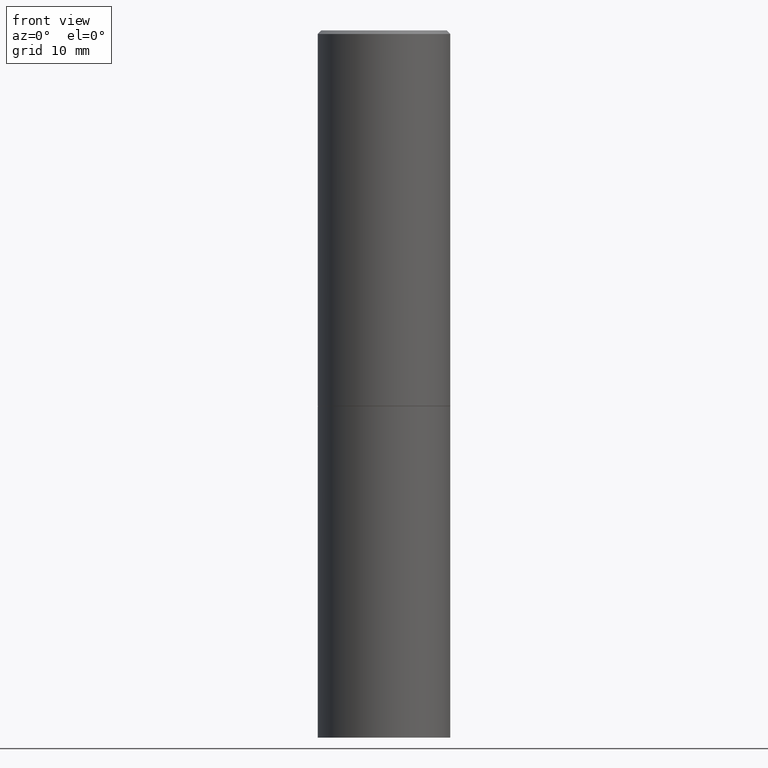
[diagram: clean part render]
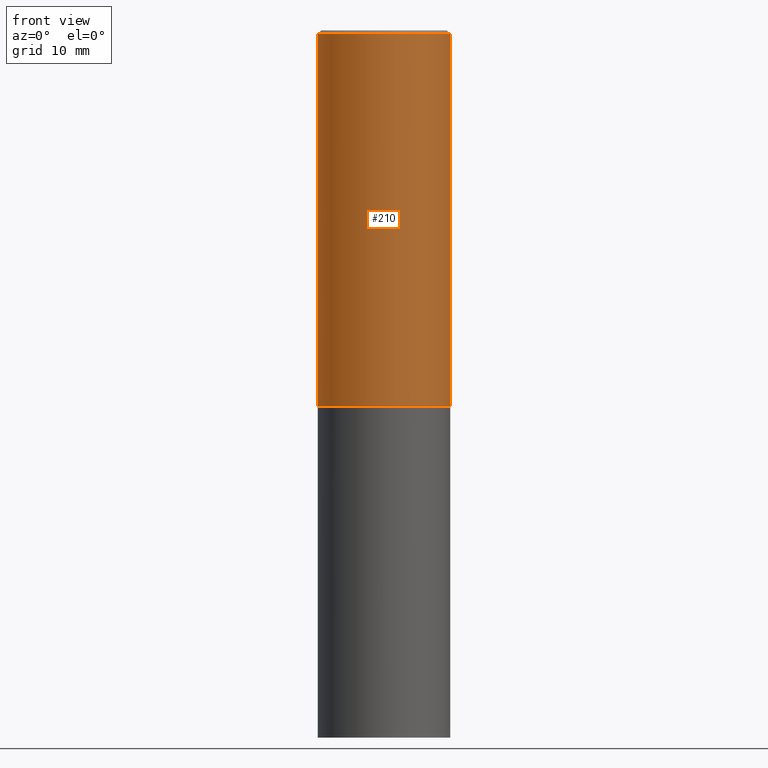
[diagram: same view with one face highlighted and labeled with its STEP entity id]
A machine part, front view. The second image highlights one B-rep face of the part: STEP entity #210.
In plain terms, the highlighted cylindrical surface (partial cylindrical patch) has radius 9.525 mm, axis along (-0, 0, 1).
Its self-contained STEP definition (entity closure, byte-faithful):
#2 = AXIS2_PLACEMENT_3D ( 'NONE', #307, #163, #24 ) ;
#3 = EDGE_CURVE ( 'NONE', #277, #78, #351, .T. ) ;
#4 = AXIS2_PLACEMENT_3D ( 'NONE', #301, #162, #247 ) ;
#24 = DIRECTION ( 'NONE',  ( 1.000000000000000000, -6.982962677686265922E-15, 0.000000000000000000 ) ) ;
#26 = FACE_OUTER_BOUND ( 'NONE', #290, .T. ) ;
#39 = CARTESIAN_POINT ( 'NONE',  ( -0.3749999999999998335, 2.548781377355485141E-15, -0.02000000000000009062 ) ) ;
#53 = CIRCLE ( 'NONE', #56, 0.3750000000000001665 ) ;
#56 = AXIS2_PLACEMENT_3D ( 'NONE', #309, #320, #89 ) ;
#69 = LINE ( 'NONE', #186, #142 ) ;
#78 = VERTEX_POINT ( 'NONE', #280 ) ;
#88 = ORIENTED_EDGE ( 'NONE', *, *, #147, .T. ) ;
#89 = DIRECTION ( 'NONE',  ( 1.000000000000000000, -6.982962677686264344E-15, 0.000000000000000000 ) ) ;
#91 = LINE ( 'NONE', #191, #361 ) ;
#142 = VECTOR ( 'NONE', #294, 39.37007874015748143 ) ;
#143 = EDGE_CURVE ( 'NONE', #289, #277, #91, .T. ) ;
#147 = EDGE_CURVE ( 'NONE', #261, #78, #69, .T. ) ;
#162 = DIRECTION ( 'NONE',  ( -2.445468806185136597E-29, 3.491481338843145583E-15, 1.000000000000000000 ) ) ;
#163 = DIRECTION ( 'NONE',  ( -2.445468806185136597E-29, 3.491481338843145583E-15, 1.000000000000000000 ) ) ;
#176 = ORIENTED_EDGE ( 'NONE', *, *, #143, .F. ) ;
#181 = DIRECTION ( 'NONE',  ( -2.445468806185136877E-29, 3.491481338843145188E-15, 1.000000000000000000 ) ) ;
#186 = CARTESIAN_POINT ( 'NONE',  ( 0.3749999999999999445, -2.618611004132349622E-15, 1.828566290923475642E-29 ) ) ;
#188 = ORIENTED_EDGE ( 'NONE', *, *, #255, .T. ) ;
#191 = CARTESIAN_POINT ( 'NONE',  ( -0.3749999999999999445, 2.664535259100375303E-15, -1.844600658845589318E-29 ) ) ;
#210 = ADVANCED_FACE ( 'NONE', ( #26 ), #358, .T. ) ;
#245 = CARTESIAN_POINT ( 'NONE',  ( -0.3750000000000001110, -1.078332736139473696E-15, -2.123999999999999666 ) ) ;
#247 = DIRECTION ( 'NONE',  ( 1.000000000000000000, -6.982962677686266711E-15, 4.876176775795935793E-29 ) ) ;
#255 = EDGE_CURVE ( 'NONE', #289, #261, #53, .T. ) ;
#261 = VERTEX_POINT ( 'NONE', #291 ) ;
#275 = ORIENTED_EDGE ( 'NONE', *, *, #3, .F. ) ;
#277 = VERTEX_POINT ( 'NONE', #39 ) ;
#280 = CARTESIAN_POINT ( 'NONE',  ( 0.3749999999999998335, -2.642516375941186451E-15, -0.02000000000000009062 ) ) ;
#289 = VERTEX_POINT ( 'NONE', #245 ) ;
#290 = EDGE_LOOP ( 'NONE', ( #176, #188, #88, #275 ) ) ;
#291 = CARTESIAN_POINT ( 'NONE',  ( 0.3750000000000001665, -1.003451736783519063E-14, -2.123999999999999666 ) ) ;
#294 = DIRECTION ( 'NONE',  ( -2.445468806185136877E-29, 3.491481338843145188E-15, 1.000000000000000000 ) ) ;
#301 = CARTESIAN_POINT ( 'NONE',  ( 0.000000000000000000, 0.000000000000000000, 0.000000000000000000 ) ) ;
#307 = CARTESIAN_POINT ( 'NONE',  ( 4.890937612370295054E-31, -6.982962677686322424E-17, -0.02000000000000009062 ) ) ;
#309 = CARTESIAN_POINT ( 'NONE',  ( 5.194175744337229665E-29, -7.415906363702840616E-15, -2.123999999999999666 ) ) ;
#320 = DIRECTION ( 'NONE',  ( -2.445468806185136597E-29, 3.491481338843145583E-15, 1.000000000000000000 ) ) ;
#351 = CIRCLE ( 'NONE', #2, 0.3749999999999998335 ) ;
#358 = CYLINDRICAL_SURFACE ( 'NONE', #4, 0.3749999999999999445 ) ;
#361 = VECTOR ( 'NONE', #181, 39.37007874015748143 ) ;